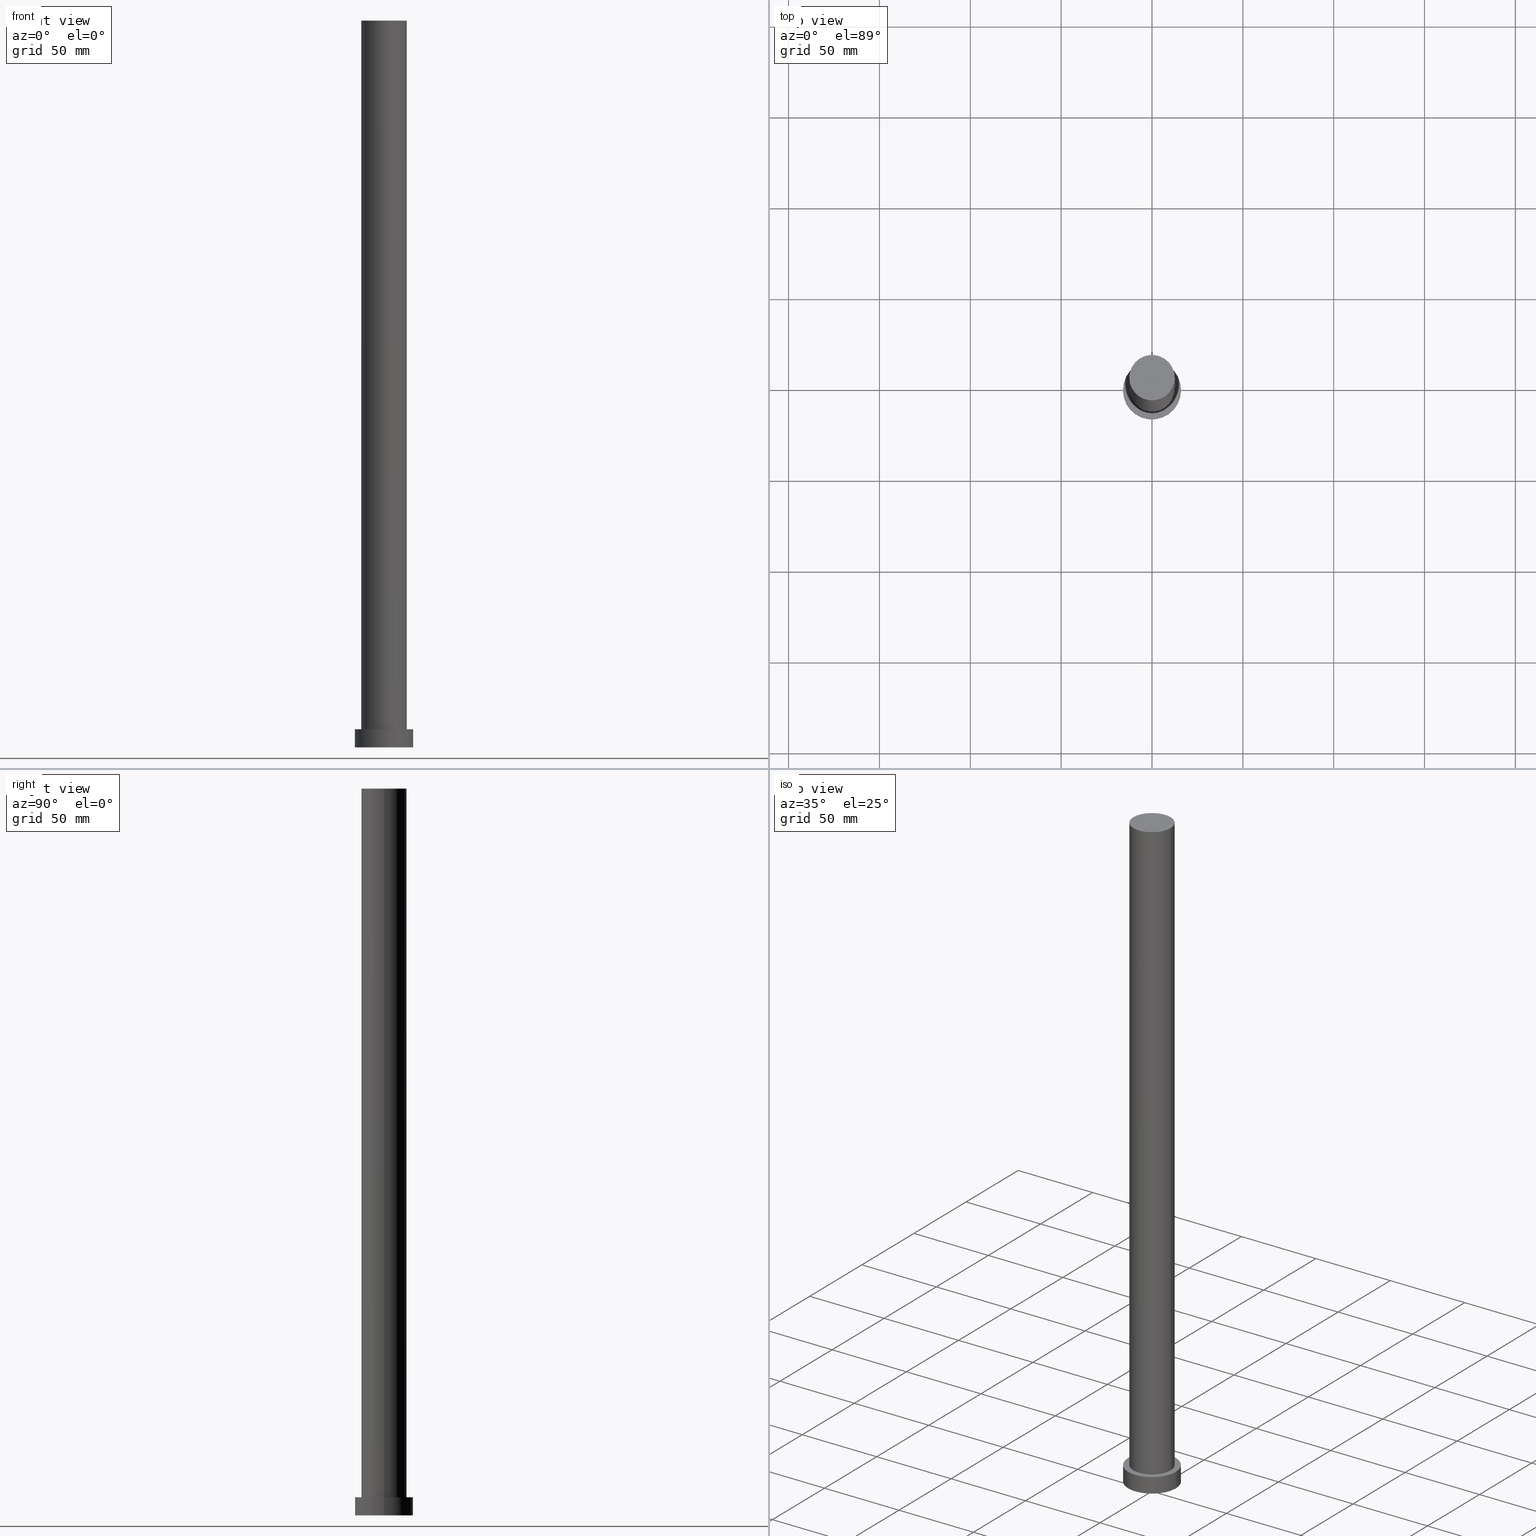
[diagram: canonical four-view strip — front | top / right | iso, engineering-drawing reading convention]
A machine part, canonical four-view strip (front | top / right | iso — engineering-drawing reading convention). The complete STEP part file that produces these views, byte-faithful:
ISO-10303-21;
HEADER;
FILE_DESCRIPTION (( 'STEP AP203' ),
    '1' );
FILE_NAME ('a734.STEP',
    '2023-02-13T07:51:46',
    ( '' ),
    ( '' ),
    'SwSTEP 2.0',
    'SolidWorks 2019',
    '' );
FILE_SCHEMA (( 'CONFIG_CONTROL_DESIGN' ));
ENDSEC;

DATA;
#1 = ORIENTED_EDGE ( 'NONE', *, *, #224, .T. ) ;
#2 =( NAMED_UNIT ( * ) PLANE_ANGLE_UNIT ( ) SI_UNIT ( $, .RADIAN. ) );
#3 = APPLICATION_CONTEXT ( 'configuration controlled 3d designs of mechanical parts and assemblies' ) ;
#4 =( GEOMETRIC_REPRESENTATION_CONTEXT ( 3 ) GLOBAL_UNCERTAINTY_ASSIGNED_CONTEXT ( ( #30 ) ) GLOBAL_UNIT_ASSIGNED_CONTEXT ( ( #92, #2, #167 ) ) REPRESENTATION_CONTEXT ( 'NONE', 'WORKASPACE' ) );
#5 = CC_DESIGN_PERSON_AND_ORGANIZATION_ASSIGNMENT ( #228, #66, ( #206 ) ) ;
#6 = APPLICATION_PROTOCOL_DEFINITION ( 'international standard', 'config_control_design', 1994, #3 ) ;
#7 = CALENDAR_DATE ( 2023, 13, 2 ) ;
#8 = APPROVAL_ROLE ( '' ) ;
#9 = DIRECTION ( 'NONE',  ( 0.000000000000000000, 0.000000000000000000, 1.000000000000000000 ) ) ;
#10 = EDGE_CURVE ( 'NONE', #18, #124, #103, .T. ) ;
#11 = DIRECTION ( 'NONE',  ( 0.000000000000000000, 0.000000000000000000, 1.000000000000000000 ) ) ;
#12 = APPLICATION_CONTEXT ( 'configuration controlled 3d designs of mechanical parts and assemblies' ) ;
#13 = APPROVAL_STATUS ( 'not_yet_approved' ) ;
#14 = DIRECTION ( 'NONE',  ( -1.000000000000000000, 0.000000000000000000, 0.000000000000000000 ) ) ;
#15 = ORIENTED_EDGE ( 'NONE', *, *, #236, .F. ) ;
#16 = CC_DESIGN_APPROVAL ( #174, ( #82 ) ) ;
#17 = FACE_OUTER_BOUND ( 'NONE', #214, .T. ) ;
#18 = VERTEX_POINT ( 'NONE', #229 ) ;
#19 = DIRECTION ( 'NONE',  ( 1.000000000000000000, 0.000000000000000000, 0.000000000000000000 ) ) ;
#20 = VERTEX_POINT ( 'NONE', #205 ) ;
#21 = AXIS2_PLACEMENT_3D ( 'NONE', #113, #231, #69 ) ;
#22 = APPLICATION_PROTOCOL_DEFINITION ( 'international standard', 'config_control_design', 1994, #12 ) ;
#23 = PERSON ( 'NEUR�EN�', 'NEUR�EN�', 'NEUR�EN�', ('NEUR�EN�'), ('NEUR�EN�'), ('NEUR�EN�') ) ;
#24 = ADVANCED_FACE ( 'NONE', ( #181 ), #250, .F. ) ;
#25 = EDGE_CURVE ( 'NONE', #232, #41, #161, .T. ) ;
#26 = CALENDAR_DATE ( 2023, 13, 2 ) ;
#27 = APPROVAL_PERSON_ORGANIZATION ( #194, #154, #8 ) ;
#28 = DIRECTION ( 'NONE',  ( 0.000000000000000000, 0.000000000000000000, 1.000000000000000000 ) ) ;
#29 = DIRECTION ( 'NONE',  ( 1.000000000000000000, 0.000000000000000000, 0.000000000000000000 ) ) ;
#30 = UNCERTAINTY_MEASURE_WITH_UNIT (LENGTH_MEASURE( 1.000000000000000082E-05 ), #92, 'distance_accuracy_value', 'NONE');
#31 = DIRECTION ( 'NONE',  ( -0.000000000000000000, -0.000000000000000000, -1.000000000000000000 ) ) ;
#32 = PERSON_AND_ORGANIZATION ( #23, #90 ) ;
#33 = CIRCLE ( 'NONE', #216, 12.50000000000000000 ) ;
#34 = DIRECTION ( 'NONE',  ( -0.000000000000000000, -0.000000000000000000, -1.000000000000000000 ) ) ;
#35 = SHAPE_DEFINITION_REPRESENTATION ( #107, #71 ) ;
#36 = CC_DESIGN_PERSON_AND_ORGANIZATION_ASSIGNMENT ( #148, #207, ( #87 ) ) ;
#37 = DIRECTION ( 'NONE',  ( 1.000000000000000000, 0.000000000000000000, -0.000000000000000000 ) ) ;
#38 = DIRECTION ( 'NONE',  ( 1.000000000000000000, 0.000000000000000000, -0.000000000000000000 ) ) ;
#39 = CARTESIAN_POINT ( 'NONE',  ( 16.00000000000000000, 1.959434878635765131E-15, 10.00000000000000000 ) ) ;
#40 = ORIENTED_EDGE ( 'NONE', *, *, #106, .T. ) ;
#41 = VERTEX_POINT ( 'NONE', #211 ) ;
#42 = ORIENTED_EDGE ( 'NONE', *, *, #25, .F. ) ;
#43 = CLOSED_SHELL ( 'NONE', ( #84, #62, #93, #176, #24, #239, #72 ) ) ;
#44 = LOCAL_TIME ( 8, 51, 46.00000000000000000, #178 ) ;
#45 = DIRECTION ( 'NONE',  ( 0.000000000000000000, 0.000000000000000000, 1.000000000000000000 ) ) ;
#46 = AXIS2_PLACEMENT_3D ( 'NONE', #177, #115, #14 ) ;
#47 = PERSON_AND_ORGANIZATION_ROLE ( 'classification_officer' ) ;
#48 = AXIS2_PLACEMENT_3D ( 'NONE', #168, #45, #125 ) ;
#49 = PERSON_AND_ORGANIZATION ( #23, #90 ) ;
#50 = PERSON_AND_ORGANIZATION_ROLE ( 'creator' ) ;
#51 = CARTESIAN_POINT ( 'NONE',  ( 16.00000000000000000, 1.959434878635765131E-15, 10.00000000000000000 ) ) ;
#52 = PERSON_AND_ORGANIZATION_ROLE ( 'design_supplier' ) ;
#53 = CIRCLE ( 'NONE', #193, 16.00000000000000000 ) ;
#54 = PLANE ( 'NONE',  #127 ) ;
#55 = DIRECTION ( 'NONE',  ( 0.000000000000000000, 0.000000000000000000, 1.000000000000000000 ) ) ;
#56 = CARTESIAN_POINT ( 'NONE',  ( 0.000000000000000000, 0.000000000000000000, 0.000000000000000000 ) ) ;
#57 = DIRECTION ( 'NONE',  ( -0.000000000000000000, -0.000000000000000000, -1.000000000000000000 ) ) ;
#58 = DIRECTION ( 'NONE',  ( 1.000000000000000000, 0.000000000000000000, 0.000000000000000000 ) ) ;
#59 = LINE ( 'NONE', #64, #104 ) ;
#60 = EDGE_LOOP ( 'NONE', ( #1, #98 ) ) ;
#61 = CARTESIAN_POINT ( 'NONE',  ( 0.000000000000000000, 0.000000000000000000, 10.00000000000000000 ) ) ;
#62 = ADVANCED_FACE ( 'NONE', ( #179 ), #251, .T. ) ;
#63 = APPROVAL ( #210, 'NEUR�EN�' ) ;
#64 = CARTESIAN_POINT ( 'NONE',  ( -16.00000000000000000, 0.000000000000000000, 10.00000000000000000 ) ) ;
#65 = CARTESIAN_POINT ( 'NONE',  ( 0.000000000000000000, 0.000000000000000000, 0.000000000000000000 ) ) ;
#66 = PERSON_AND_ORGANIZATION_ROLE ( 'creator' ) ;
#67 = EDGE_CURVE ( 'NONE', #124, #18, #171, .T. ) ;
#68 = PERSON_AND_ORGANIZATION ( #23, #90 ) ;
#69 = DIRECTION ( 'NONE',  ( 1.000000000000000000, 0.000000000000000000, 0.000000000000000000 ) ) ;
#70 = APPROVAL_PERSON_ORGANIZATION ( #32, #174, #180 ) ;
#71 = ADVANCED_BREP_SHAPE_REPRESENTATION ( 'a734', ( #208, #48 ), #4 ) ;
#72 = ADVANCED_FACE ( 'NONE', ( #197 ), #54, .T. ) ;
#73 = LINE ( 'NONE', #157, #187 ) ;
#74 = CYLINDRICAL_SURFACE ( 'NONE', #46, 12.50000000000000000 ) ;
#75 = DIRECTION ( 'NONE',  ( 0.000000000000000000, 0.000000000000000000, 1.000000000000000000 ) ) ;
#76 = VECTOR ( 'NONE', #185, 1000.000000000000000 ) ;
#77 = EDGE_CURVE ( 'NONE', #164, #232, #33, .T. ) ;
#78 = ORIENTED_EDGE ( 'NONE', *, *, #106, .F. ) ;
#79 = EDGE_LOOP ( 'NONE', ( #15, #235 ) ) ;
#80 = CARTESIAN_POINT ( 'NONE',  ( -12.50000000000000000, 0.000000000000000000, 400.0000000000000000 ) ) ;
#81 = CC_DESIGN_PERSON_AND_ORGANIZATION_ASSIGNMENT ( #49, #50, ( #108 ) ) ;
#82 = SECURITY_CLASSIFICATION ( '', '', #196 ) ;
#83 = ORIENTED_EDGE ( 'NONE', *, *, #237, .T. ) ;
#84 = ADVANCED_FACE ( 'NONE', ( #89 ), #74, .T. ) ;
#85 = PERSON_AND_ORGANIZATION ( #23, #90 ) ;
#86 = DATE_AND_TIME ( #7, #189 ) ;
#87 = PRODUCT ( 'a734', 'a734', '', ( #240 ) ) ;
#88 = APPROVAL_DATE_TIME ( #191, #154 ) ;
#89 = FACE_OUTER_BOUND ( 'NONE', #234, .T. ) ;
#90 = ORGANIZATION ( 'NEUR�EN�', 'NEUR�EN�', '' ) ;
#91 = CARTESIAN_POINT ( 'NONE',  ( 0.000000000000000000, 0.000000000000000000, 400.0000000000000000 ) ) ;
#92 =( LENGTH_UNIT ( ) NAMED_UNIT ( * ) SI_UNIT ( .MILLI., .METRE. ) );
#93 = ADVANCED_FACE ( 'NONE', ( #94 ), #160, .T. ) ;
#94 = FACE_OUTER_BOUND ( 'NONE', #116, .T. ) ;
#95 = DIRECTION ( 'NONE',  ( 1.000000000000000000, 0.000000000000000000, 0.000000000000000000 ) ) ;
#96 = DIRECTION ( 'NONE',  ( 0.000000000000000000, 0.000000000000000000, 1.000000000000000000 ) ) ;
#97 = DIRECTION ( 'NONE',  ( -0.000000000000000000, -0.000000000000000000, -1.000000000000000000 ) ) ;
#98 = ORIENTED_EDGE ( 'NONE', *, *, #77, .T. ) ;
#99 = CC_DESIGN_DATE_AND_TIME_ASSIGNMENT ( #86, #243, ( #82 ) ) ;
#100 = CARTESIAN_POINT ( 'NONE',  ( 0.000000000000000000, 0.000000000000000000, 400.0000000000000000 ) ) ;
#101 = ORIENTED_EDGE ( 'NONE', *, *, #121, .F. ) ;
#102 = ORIENTED_EDGE ( 'NONE', *, *, #199, .F. ) ;
#103 = CIRCLE ( 'NONE', #152, 16.00000000000000000 ) ;
#104 = VECTOR ( 'NONE', #97, 1000.000000000000000 ) ;
#105 = APPROVAL_ROLE ( '' ) ;
#106 = EDGE_CURVE ( 'NONE', #164, #186, #73, .T. ) ;
#107 = PRODUCT_DEFINITION_SHAPE ( 'NONE', 'NONE',  #108 ) ;
#108 = PRODUCT_DEFINITION ( 'NEZN�M�', '', #206, #247 ) ;
#109 = CIRCLE ( 'NONE', #209, 16.00000000000000000 ) ;
#110 = COORDINATED_UNIVERSAL_TIME_OFFSET ( 1, 0, .AHEAD. ) ;
#111 = DIRECTION ( 'NONE',  ( -1.000000000000000000, 0.000000000000000000, 0.000000000000000000 ) ) ;
#112 = AXIS2_PLACEMENT_3D ( 'NONE', #203, #254, #163 ) ;
#113 = CARTESIAN_POINT ( 'NONE',  ( 0.000000000000000000, 0.000000000000000000, 10.00000000000000000 ) ) ;
#114 = CARTESIAN_POINT ( 'NONE',  ( 12.50000000000000000, 1.530808498934191521E-15, 10.00000000000000000 ) ) ;
#115 = DIRECTION ( 'NONE',  ( -0.000000000000000000, -0.000000000000000000, -1.000000000000000000 ) ) ;
#116 = EDGE_LOOP ( 'NONE', ( #142, #255, #202, #139 ) ) ;
#117 = CYLINDRICAL_SURFACE ( 'NONE', #112, 12.50000000000000000 ) ;
#118 = AXIS2_PLACEMENT_3D ( 'NONE', #162, #140, #38 ) ;
#119 = ORIENTED_EDGE ( 'NONE', *, *, #25, .T. ) ;
#120 = PLANE ( 'NONE',  #118 ) ;
#121 = EDGE_CURVE ( 'NONE', #41, #186, #135, .T. ) ;
#122 = EDGE_CURVE ( 'NONE', #238, #20, #53, .T. ) ;
#123 = ORIENTED_EDGE ( 'NONE', *, *, #77, .F. ) ;
#124 = VERTEX_POINT ( 'NONE', #51 ) ;
#125 = DIRECTION ( 'NONE',  ( 1.000000000000000000, 0.000000000000000000, 0.000000000000000000 ) ) ;
#126 = CC_DESIGN_DATE_AND_TIME_ASSIGNMENT ( #130, #131, ( #108 ) ) ;
#127 = AXIS2_PLACEMENT_3D ( 'NONE', #200, #28, #156 ) ;
#128 = AXIS2_PLACEMENT_3D ( 'NONE', #222, #96, #19 ) ;
#129 = COORDINATED_UNIVERSAL_TIME_OFFSET ( 1, 0, .AHEAD. ) ;
#130 = DATE_AND_TIME ( #26, #198 ) ;
#131 = DATE_TIME_ROLE ( 'creation_date' ) ;
#132 = APPROVAL_STATUS ( 'not_yet_approved' ) ;
#133 = LOCAL_TIME ( 8, 51, 46.00000000000000000, #245 ) ;
#134 = CARTESIAN_POINT ( 'NONE',  ( 0.000000000000000000, 0.000000000000000000, 10.00000000000000000 ) ) ;
#135 = CIRCLE ( 'NONE', #21, 12.50000000000000000 ) ;
#136 = CARTESIAN_POINT ( 'NONE',  ( 0.000000000000000000, 0.000000000000000000, 10.00000000000000000 ) ) ;
#137 = APPROVAL_PERSON_ORGANIZATION ( #85, #63, #105 ) ;
#138 = DIRECTION ( 'NONE',  ( 0.000000000000000000, 0.000000000000000000, 1.000000000000000000 ) ) ;
#139 = ORIENTED_EDGE ( 'NONE', *, *, #236, .T. ) ;
#140 = DIRECTION ( 'NONE',  ( 0.000000000000000000, 0.000000000000000000, 1.000000000000000000 ) ) ;
#141 = DIRECTION ( 'NONE',  ( 1.000000000000000000, 0.000000000000000000, 0.000000000000000000 ) ) ;
#142 = ORIENTED_EDGE ( 'NONE', *, *, #237, .F. ) ;
#143 = ORIENTED_EDGE ( 'NONE', *, *, #122, .T. ) ;
#144 = DIRECTION ( 'NONE',  ( 0.000000000000000000, 0.000000000000000000, 1.000000000000000000 ) ) ;
#145 = ORIENTED_EDGE ( 'NONE', *, *, #199, .T. ) ;
#146 = CC_DESIGN_APPROVAL ( #63, ( #108 ) ) ;
#147 = FACE_OUTER_BOUND ( 'NONE', #166, .T. ) ;
#148 = PERSON_AND_ORGANIZATION ( #23, #90 ) ;
#149 = PERSON_AND_ORGANIZATION ( #23, #90 ) ;
#150 = VECTOR ( 'NONE', #57, 1000.000000000000000 ) ;
#151 = LOCAL_TIME ( 8, 51, 46.00000000000000000, #225 ) ;
#152 = AXIS2_PLACEMENT_3D ( 'NONE', #61, #144, #95 ) ;
#153 = CC_DESIGN_APPROVAL ( #154, ( #206 ) ) ;
#154 = APPROVAL ( #132, 'NEUR�EN�' ) ;
#155 = CARTESIAN_POINT ( 'NONE',  ( 0.000000000000000000, 0.000000000000000000, 10.00000000000000000 ) ) ;
#156 = DIRECTION ( 'NONE',  ( 1.000000000000000000, 0.000000000000000000, -0.000000000000000000 ) ) ;
#157 = CARTESIAN_POINT ( 'NONE',  ( 12.50000000000000000, 1.530808498934191521E-15, 400.0000000000000000 ) ) ;
#158 = ORIENTED_EDGE ( 'NONE', *, *, #165, .F. ) ;
#159 = DIRECTION ( 'NONE',  ( 1.000000000000000000, 0.000000000000000000, 0.000000000000000000 ) ) ;
#160 = CYLINDRICAL_SURFACE ( 'NONE', #242, 16.00000000000000000 ) ;
#161 = LINE ( 'NONE', #215, #150 ) ;
#162 = CARTESIAN_POINT ( 'NONE',  ( 0.000000000000000000, 0.000000000000000000, 10.00000000000000000 ) ) ;
#163 = DIRECTION ( 'NONE',  ( -1.000000000000000000, 0.000000000000000000, 0.000000000000000000 ) ) ;
#164 = VERTEX_POINT ( 'NONE', #175 ) ;
#165 = EDGE_CURVE ( 'NONE', #18, #20, #59, .T. ) ;
#166 = EDGE_LOOP ( 'NONE', ( #78, #219, #119, #204 ) ) ;
#167 =( NAMED_UNIT ( * ) SI_UNIT ( $, .STERADIAN. ) SOLID_ANGLE_UNIT ( ) );
#168 = CARTESIAN_POINT ( 'NONE',  ( 0.000000000000000000, 0.000000000000000000, 0.000000000000000000 ) ) ;
#169 = PRODUCT_RELATED_PRODUCT_CATEGORY ( 'detail', '', ( #87 ) ) ;
#170 = CALENDAR_DATE ( 2023, 13, 2 ) ;
#171 = CIRCLE ( 'NONE', #192, 16.00000000000000000 ) ;
#172 = CALENDAR_DATE ( 2023, 13, 2 ) ;
#173 = AXIS2_PLACEMENT_3D ( 'NONE', #155, #31, #111 ) ;
#174 = APPROVAL ( #13, 'NEUR�EN�' ) ;
#175 = CARTESIAN_POINT ( 'NONE',  ( 12.50000000000000000, 1.530808498934191521E-15, 400.0000000000000000 ) ) ;
#176 = ADVANCED_FACE ( 'NONE', ( #183, #17 ), #120, .T. ) ;
#177 = CARTESIAN_POINT ( 'NONE',  ( 0.000000000000000000, 0.000000000000000000, 400.0000000000000000 ) ) ;
#178 = COORDINATED_UNIVERSAL_TIME_OFFSET ( 1, 0, .AHEAD. ) ;
#179 = FACE_OUTER_BOUND ( 'NONE', #188, .T. ) ;
#180 = APPROVAL_ROLE ( '' ) ;
#181 = FACE_OUTER_BOUND ( 'NONE', #79, .T. ) ;
#182 = ORIENTED_EDGE ( 'NONE', *, *, #10, .T. ) ;
#183 = FACE_BOUND ( 'NONE', #184, .T. ) ;
#184 = EDGE_LOOP ( 'NONE', ( #101, #102 ) ) ;
#185 = DIRECTION ( 'NONE',  ( -0.000000000000000000, -0.000000000000000000, -1.000000000000000000 ) ) ;
#186 = VERTEX_POINT ( 'NONE', #114 ) ;
#187 = VECTOR ( 'NONE', #34, 1000.000000000000000 ) ;
#188 = EDGE_LOOP ( 'NONE', ( #253, #83, #143, #158 ) ) ;
#189 = LOCAL_TIME ( 8, 51, 46.00000000000000000, #129 ) ;
#190 = AXIS2_PLACEMENT_3D ( 'NONE', #252, #55, #37 ) ;
#191 = DATE_AND_TIME ( #170, #133 ) ;
#192 = AXIS2_PLACEMENT_3D ( 'NONE', #134, #9, #29 ) ;
#193 = AXIS2_PLACEMENT_3D ( 'NONE', #56, #138, #141 ) ;
#194 = PERSON_AND_ORGANIZATION ( #23, #90 ) ;
#195 = DIRECTION ( 'NONE',  ( 1.000000000000000000, 0.000000000000000000, 0.000000000000000000 ) ) ;
#196 = SECURITY_CLASSIFICATION_LEVEL ( 'unclassified' ) ;
#197 = FACE_OUTER_BOUND ( 'NONE', #60, .T. ) ;
#198 = LOCAL_TIME ( 8, 51, 46.00000000000000000, #110 ) ;
#199 = EDGE_CURVE ( 'NONE', #186, #41, #221, .T. ) ;
#200 = CARTESIAN_POINT ( 'NONE',  ( 0.000000000000000000, 0.000000000000000000, 400.0000000000000000 ) ) ;
#201 = CARTESIAN_POINT ( 'NONE',  ( 16.00000000000000000, 1.959434878635765131E-15, 0.000000000000000000 ) ) ;
#202 = ORIENTED_EDGE ( 'NONE', *, *, #165, .T. ) ;
#203 = CARTESIAN_POINT ( 'NONE',  ( 0.000000000000000000, 0.000000000000000000, 400.0000000000000000 ) ) ;
#204 = ORIENTED_EDGE ( 'NONE', *, *, #121, .T. ) ;
#205 = CARTESIAN_POINT ( 'NONE',  ( -16.00000000000000000, 0.000000000000000000, 0.000000000000000000 ) ) ;
#206 = PRODUCT_DEFINITION_FORMATION_WITH_SPECIFIED_SOURCE ( 'LIBOVOLN�', '', #87, .NOT_KNOWN. ) ;
#207 = PERSON_AND_ORGANIZATION_ROLE ( 'design_owner' ) ;
#208 = MANIFOLD_SOLID_BREP ( 'P�idat vysunut�m3', #43 ) ;
#209 = AXIS2_PLACEMENT_3D ( 'NONE', #65, #230, #159 ) ;
#210 = APPROVAL_STATUS ( 'not_yet_approved' ) ;
#211 = CARTESIAN_POINT ( 'NONE',  ( -12.50000000000000000, 0.000000000000000000, 10.00000000000000000 ) ) ;
#212 = DIRECTION ( 'NONE',  ( -0.000000000000000000, -0.000000000000000000, -1.000000000000000000 ) ) ;
#213 = CALENDAR_DATE ( 2023, 13, 2 ) ;
#214 = EDGE_LOOP ( 'NONE', ( #182, #220 ) ) ;
#215 = CARTESIAN_POINT ( 'NONE',  ( -12.50000000000000000, 0.000000000000000000, 400.0000000000000000 ) ) ;
#216 = AXIS2_PLACEMENT_3D ( 'NONE', #91, #11, #195 ) ;
#217 = CC_DESIGN_PERSON_AND_ORGANIZATION_ASSIGNMENT ( #149, #52, ( #206 ) ) ;
#218 = AXIS2_PLACEMENT_3D ( 'NONE', #100, #75, #58 ) ;
#219 = ORIENTED_EDGE ( 'NONE', *, *, #224, .F. ) ;
#220 = ORIENTED_EDGE ( 'NONE', *, *, #67, .T. ) ;
#221 = CIRCLE ( 'NONE', #128, 12.50000000000000000 ) ;
#222 = CARTESIAN_POINT ( 'NONE',  ( 0.000000000000000000, 0.000000000000000000, 10.00000000000000000 ) ) ;
#223 = CC_DESIGN_SECURITY_CLASSIFICATION ( #82, ( #206 ) ) ;
#224 = EDGE_CURVE ( 'NONE', #232, #164, #244, .T. ) ;
#225 = COORDINATED_UNIVERSAL_TIME_OFFSET ( 1, 0, .AHEAD. ) ;
#226 = CC_DESIGN_PERSON_AND_ORGANIZATION_ASSIGNMENT ( #68, #47, ( #82 ) ) ;
#227 = DATE_AND_TIME ( #172, #151 ) ;
#228 = PERSON_AND_ORGANIZATION ( #23, #90 ) ;
#229 = CARTESIAN_POINT ( 'NONE',  ( -16.00000000000000000, 0.000000000000000000, 10.00000000000000000 ) ) ;
#230 = DIRECTION ( 'NONE',  ( 0.000000000000000000, 0.000000000000000000, 1.000000000000000000 ) ) ;
#231 = DIRECTION ( 'NONE',  ( 0.000000000000000000, 0.000000000000000000, 1.000000000000000000 ) ) ;
#232 = VERTEX_POINT ( 'NONE', #80 ) ;
#233 = LINE ( 'NONE', #39, #76 ) ;
#234 = EDGE_LOOP ( 'NONE', ( #123, #40, #145, #42 ) ) ;
#235 = ORIENTED_EDGE ( 'NONE', *, *, #122, .F. ) ;
#236 = EDGE_CURVE ( 'NONE', #20, #238, #109, .T. ) ;
#237 = EDGE_CURVE ( 'NONE', #124, #238, #233, .T. ) ;
#238 = VERTEX_POINT ( 'NONE', #201 ) ;
#239 = ADVANCED_FACE ( 'NONE', ( #147 ), #117, .T. ) ;
#240 = MECHANICAL_CONTEXT ( 'NONE', #12, 'mechanical' ) ;
#241 = APPROVAL_DATE_TIME ( #227, #63 ) ;
#242 = AXIS2_PLACEMENT_3D ( 'NONE', #136, #212, #248 ) ;
#243 = DATE_TIME_ROLE ( 'classification_date' ) ;
#244 = CIRCLE ( 'NONE', #218, 12.50000000000000000 ) ;
#245 = COORDINATED_UNIVERSAL_TIME_OFFSET ( 1, 0, .AHEAD. ) ;
#246 = DATE_AND_TIME ( #213, #44 ) ;
#247 = DESIGN_CONTEXT ( 'detailed design', #3, 'design' ) ;
#248 = DIRECTION ( 'NONE',  ( -1.000000000000000000, 0.000000000000000000, 0.000000000000000000 ) ) ;
#249 = APPROVAL_DATE_TIME ( #246, #174 ) ;
#250 = PLANE ( 'NONE',  #190 ) ;
#251 = CYLINDRICAL_SURFACE ( 'NONE', #173, 16.00000000000000000 ) ;
#252 = CARTESIAN_POINT ( 'NONE',  ( 0.000000000000000000, 0.000000000000000000, 0.000000000000000000 ) ) ;
#253 = ORIENTED_EDGE ( 'NONE', *, *, #67, .F. ) ;
#254 = DIRECTION ( 'NONE',  ( -0.000000000000000000, -0.000000000000000000, -1.000000000000000000 ) ) ;
#255 = ORIENTED_EDGE ( 'NONE', *, *, #10, .F. ) ;
ENDSEC;
END-ISO-10303-21;
